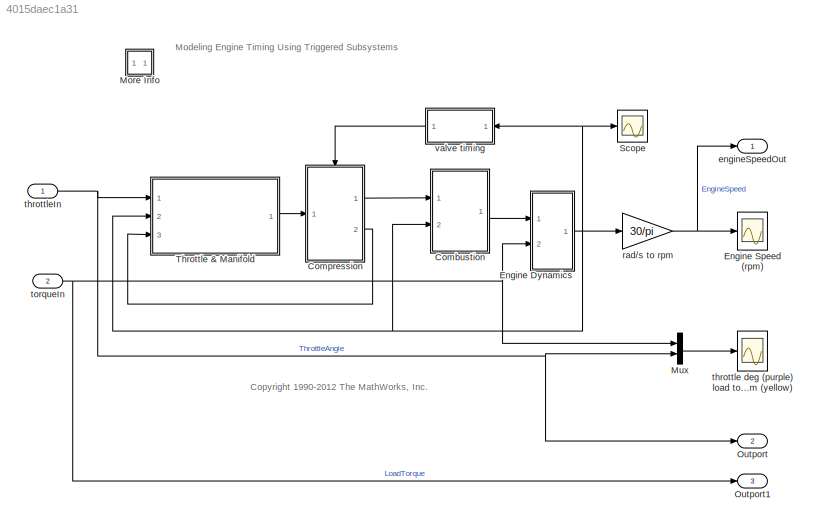
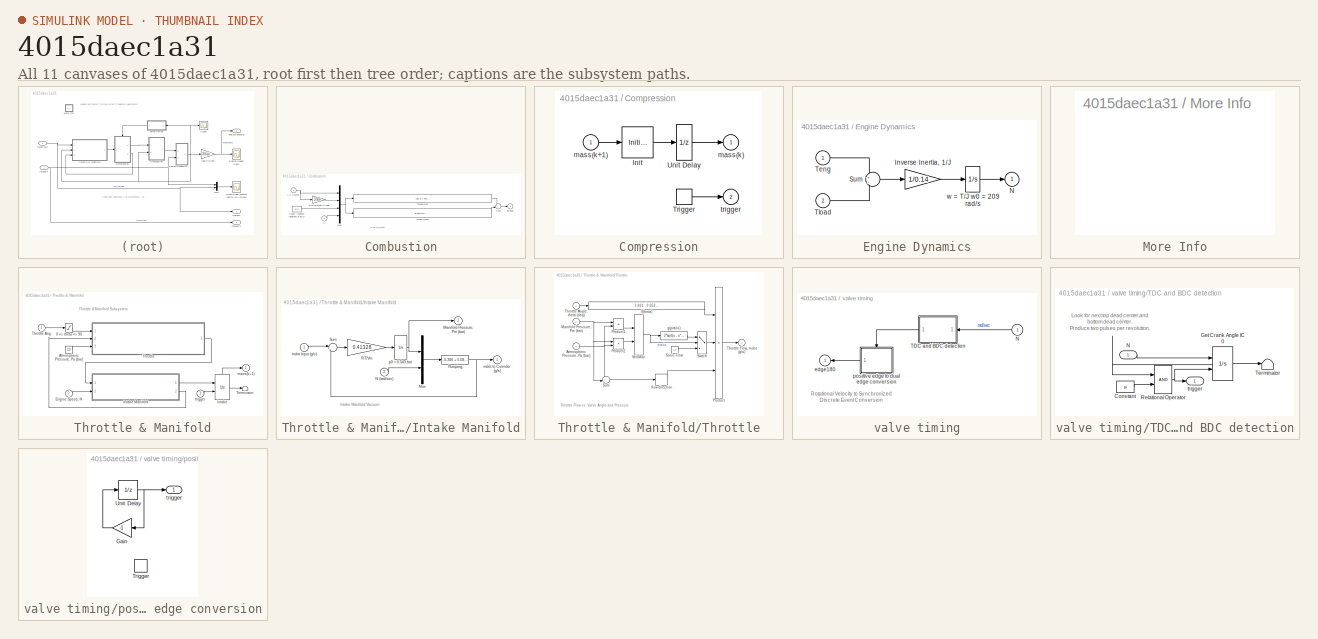
[diagram: thumbnail index - all 11 canvases of the model, root first then tree order]
MODEL slx_4015daec1a31
KIND model
CONFIG AbsTol = 1e-6
CONFIG EnableMultiTasking = off
CONFIG FixedStep = timeStepMax
CONFIG MaxStep = timeStepMax
CONFIG MinStep = auto
CONFIG RelTol = 1e-3
CONFIG SampleTimeConstraint = Unconstrained
CONFIG SolverName = VariableStepAuto
CONFIG StartTime = 0.0
CONFIG StopTime = timeFinal
BLOCK [SubSystem] Combustion
  Ports = [2, 1]
  RequestExecContextInheritance = off
BLOCK [Inport] Combustion/Air Charge
BLOCK [Mux] Combustion/Mux
  DisplayOption = bar
  Ports = [4, 1]
BLOCK [Inport] Combustion/N
  Port = 2
BLOCK [Constant] Combustion/Spark Advance (degrees BTDC)
  Value = 15.0
BLOCK [Gain] Combustion/Stoichiometric Fuel
  Gain = 1/14.6
  OutDataTypeStr = Inherit: Same as input
  ParamDataTypeStr = Inherit: Same as input
  SaturateOnIntegerOverflow = on
BLOCK [Sum] Combustion/Sum
  InputSameDT = on
  OutDataTypeStr = Inherit: Same as first input
  Ports = [2, 1]
  SaturateOnIntegerOverflow = on
BLOCK [Outport] Combustion/Torque
  InitialOutput = 0
  VectorParamsAs1DForOutWhenUnconnected = off
BLOCK [Fcn] Combustion/Torque Gen
  Expr = -181.3 + 379.36*u[1] + 21.91*u[1]/u[2] - (0.85*u[1]*u[1])/(u[2]*u[2]) + 0.26*u[3] - 0.0028*u[3]*u[3]
BLOCK [Fcn] Combustion/Torque Gen2
  Expr = 0.027*u[4] - 0.000107*u[4]*u[4] + 0.00048*u[4]*u[3] + 2.55*u[3]*u[1] - 0.05*u[3]*u[3]*u[1]
BLOCK [SubSystem] Compression
  Ports = [1, 2, 0, 1]
  RequestExecContextInheritance = off
  TreatAsAtomicUnit = on
BLOCK [InitialCondition] Compression/Init
  Value = 0.152
BLOCK [TriggerPort] Compression/Trigger
  Ports = [0, 1]
  ShowOutputPort = on
  TriggerType = either
  VariantControl = (inherit)
BLOCK [UnitDelay] Compression/Unit Delay
  HasFrameUpgradeWarning = on
  InitialCondition = 0.152
  SampleTime = -1
BLOCK [Outport] Compression/mass(k)
  InitialOutput = 0.152
  VectorParamsAs1DForOutWhenUnconnected = off
BLOCK [Inport] Compression/mass(k+1)
BLOCK [Outport] Compression/trigger
  InitialOutput = -1
  Port = 2
  VectorParamsAs1DForOutWhenUnconnected = off
BLOCK [SubSystem] Engine Dynamics
  Ports = [2, 1]
  RequestExecContextInheritance = off
BLOCK [Gain] Engine Dynamics/Inverse Inertia, 1//J
  Gain = 1/0.14
  OutDataTypeStr = Inherit: Same as input
  ParamDataTypeStr = Inherit: Same as input
  SaturateOnIntegerOverflow = on
BLOCK [Outport] Engine Dynamics/N
  InitialOutput = 0
  VectorParamsAs1DForOutWhenUnconnected = off
BLOCK [Sum] Engine Dynamics/Sum
  InputSameDT = on
  Inputs = +-
  OutDataTypeStr = Inherit: Same as first input
  Ports = [2, 1]
  SaturateOnIntegerOverflow = on
BLOCK [Inport] Engine Dynamics/Teng
BLOCK [Inport] Engine Dynamics/Tload
  Port = 2
BLOCK [Integrator] Engine Dynamics/w = T//J w0 = 209 rad//s
  InitialCondition = 209.48
  Ports = [1, 1]
BLOCK [Scope] Engine Speed (rpm)
  Floating = off
  NumInputPorts = 1
  Ports = [1]
  ScopeSpecificationString = Simulink.scopes.TimeScopeBlockCfg('CurrentConfiguration', extmgr.ConfigurationSet(extmgr.Configuration('Core','General UI',true),extmgr.Configuration('Core','Source UI',true),extmgr.Configuration('Sources','WiredSimulink',true,'DataLoggingVariableName','N','DataLoggingSaveFormat','Structure','DataLoggingDecimation','1','DataLoggingDecimateData',true),extmgr.Configuration('Visuals','Time Domain',tr...<+1714ch>
BLOCK [SubSystem] More Info
  OpenFcn = showExample('simulink_automotive/ModelingEngineTimingUsingTriggeredSubsystemsExample')
  Ports = []
  RequestExecContextInheritance = off
BLOCK [Mux] Mux
  DisplayOption = bar
  Inputs = 2
  Ports = [2, 1]
BLOCK [Outport] Outport
  Port = 2
BLOCK [Outport] Outport1
  Port = 3
BLOCK [Scope] Scope
  Floating = off
  NumInputPorts = 1
  Ports = [1]
  ScopeSpecificationString = Simulink.scopes.TimeScopeBlockCfg('CurrentConfiguration', extmgr.ConfigurationSet(extmgr.Configuration('Core','General UI',true),extmgr.Configuration('Core','Source UI',true),extmgr.Configuration('Sources','WiredSimulink',true,'DataLoggingVariableName','ScopeData1'),extmgr.Configuration('Visuals','Time Domain',true),extmgr.Configuration('Tools','Plot Navigation',true),extmgr.Configuration('Tools',...<+40ch>
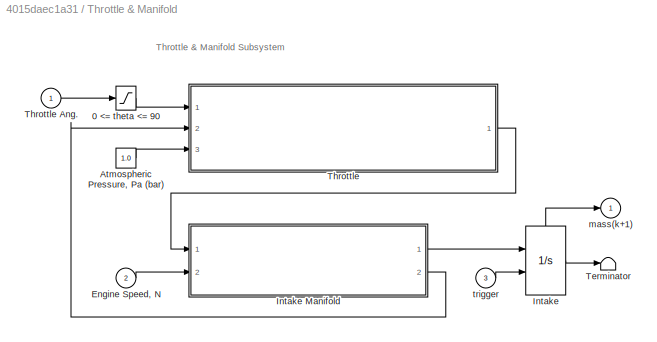
BLOCK [SubSystem] Throttle & Manifold
  Ports = [3, 1]
  RequestExecContextInheritance = off
BLOCK [Saturate] Throttle & Manifold/0 <= theta <= 90
  LowerLimit = 0
  NameLocation = top
  UpperLimit = 90
BLOCK [Constant] Throttle & Manifold/Atmospheric Pressure, Pa (bar)
  Value = 1.0
BLOCK [Inport] Throttle & Manifold/Engine Speed, N
  Port = 2
BLOCK [Integrator] Throttle & Manifold/Intake
  ExternalReset = either
  Ports = [2, 1, 0, 0, 1]
  ShowStatePort = on
BLOCK [SubSystem] Throttle & Manifold/Intake Manifold
  Ports = [2, 2]
  RequestExecContextInheritance = off
BLOCK [Outport] Throttle & Manifold/Intake Manifold/Manifold Pressure, Pm (bar)
  InitialOutput = 0
  Port = 2
  VectorParamsAs1DForOutWhenUnconnected = off
BLOCK [Mux] Throttle & Manifold/Intake Manifold/Mux
  DisplayOption = bar
  Inputs = 2
  Ports = [2, 1]
BLOCK [Inport] Throttle & Manifold/Intake Manifold/N (rad//sec)
  Port = 2
BLOCK [Fcn] Throttle & Manifold/Intake Manifold/Pumping
  Expr = -0.366 + 0.08979*u[1]*u[2] - 0.0337*u[2]*u[1]*u[1] + 0.0001*u[1]*u[2]*u[2]
BLOCK [Gain] Throttle & Manifold/Intake Manifold/RT//Vm
  Gain = 0.41328
  OutDataTypeStr = Inherit: Same as input
  ParamDataTypeStr = Inherit: Same as input
  SaturateOnIntegerOverflow = on
BLOCK [Sum] Throttle & Manifold/Intake Manifold/Sum
  InputSameDT = on
  Inputs = |+-
  OutDataTypeStr = Inherit: Same as first input
  Ports = [2, 1]
  SaturateOnIntegerOverflow = on
BLOCK [Inport] Throttle & Manifold/Intake Manifold/mdot Input (g//s)
BLOCK [Outport] Throttle & Manifold/Intake Manifold/mdot to Cylinder (g//s)
  InitialOutput = 0
  VectorParamsAs1DForOutWhenUnconnected = off
BLOCK [Integrator] Throttle & Manifold/Intake Manifold/p0 = 0.543 bar
  InitialCondition = .543
  Ports = [1, 1]
BLOCK [Terminator] Throttle & Manifold/Terminator
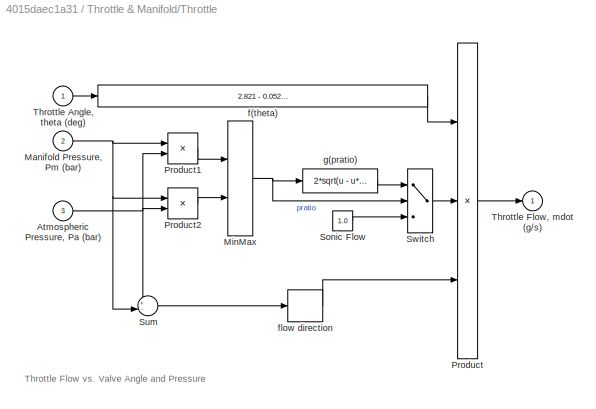
BLOCK [SubSystem] Throttle & Manifold/Throttle
  Ports = [3, 1]
  RequestExecContextInheritance = off
BLOCK [Inport] Throttle & Manifold/Throttle Ang.
BLOCK [Inport] Throttle & Manifold/Throttle/Atmospheric Pressure, Pa (bar) 
  Port = 3
BLOCK [Inport] Throttle & Manifold/Throttle/Manifold Pressure, Pm (bar)
  Port = 2
BLOCK [MinMax] Throttle & Manifold/Throttle/MinMax
  InputSameDT = on
  Inputs = 2
  Ports = [2, 1]
  SaturateOnIntegerOverflow = on
BLOCK [Product] Throttle & Manifold/Throttle/Product
  InputSameDT = on
  Inputs = 3
  OutDataTypeStr = Inherit: Same as first input
  Ports = [3, 1]
  RndMeth = Zero
  SaturateOnIntegerOverflow = on
BLOCK [Product] Throttle & Manifold/Throttle/Product1
  InputSameDT = on
  Inputs = */
  OutDataTypeStr = Inherit: Same as first input
  Ports = [2, 1]
  RndMeth = Zero
  SaturateOnIntegerOverflow = on
BLOCK [Product] Throttle & Manifold/Throttle/Product2
  InputSameDT = on
  Inputs = /*
  OutDataTypeStr = Inherit: Same as first input
  Ports = [2, 1]
  RndMeth = Zero
  SaturateOnIntegerOverflow = on
BLOCK [Constant] Throttle & Manifold/Throttle/Sonic Flow 
  Value = 1.0
BLOCK [Sum] Throttle & Manifold/Throttle/Sum
  InputSameDT = on
  Inputs = +-|
  OutDataTypeStr = Inherit: Same as first input
  Ports = [2, 1]
  SaturateOnIntegerOverflow = on
BLOCK [Switch] Throttle & Manifold/Throttle/Switch
  Threshold = 0.5
BLOCK [Inport] Throttle & Manifold/Throttle/Throttle Angle, theta (deg)
  NameLocation = top
BLOCK [Outport] Throttle & Manifold/Throttle/Throttle Flow, mdot (g//s)
  InitialOutput = 0
  VectorParamsAs1DForOutWhenUnconnected = off
BLOCK [Fcn] Throttle & Manifold/Throttle/f(theta)
  Expr = 2.821 - 0.05231*u + 0.10299*u*u - 0.00063*u*u*u
  NameLocation = top
BLOCK [Signum] Throttle & Manifold/Throttle/flow direction
BLOCK [Fcn] Throttle & Manifold/Throttle/g(pratio)
  Expr = 2*sqrt(u - u*u)
  NameLocation = top
BLOCK [Outport] Throttle & Manifold/mass(k+1)
  InitialOutput = 0
  VectorParamsAs1DForOutWhenUnconnected = off
BLOCK [Inport] Throttle & Manifold/trigger
  Port = 3
BLOCK [Outport] engineSpeedOut
BLOCK [Gain] rad//s to rpm
  Gain = 30/pi
  OutDataTypeStr = Inherit: Same as input
  ParamDataTypeStr = Inherit: Same as input
  SaturateOnIntegerOverflow = on
BLOCK [Scope] throttle deg (purple) load torque Nm (yellow)
  Floating = off
  NumInputPorts = 1
  Ports = [1]
  ScopeSpecificationString = Simulink.scopes.TimeScopeBlockCfg('CurrentConfiguration', extmgr.ConfigurationSet(extmgr.Configuration('Core','General UI',true),extmgr.Configuration('Core','Source UI',true),extmgr.Configuration('Sources','WiredSimulink',true,'DataLoggingVariableName','Tth','DataLoggingSaveFormat','Structure','DataLoggingDecimation','1','DataLoggingDecimateData',true),extmgr.Configuration('Visuals','Time Domain',...<+1721ch>
BLOCK [Inport] throttleIn
BLOCK [Inport] torqueIn
  Port = 2
BLOCK [SubSystem] valve timing
  Ports = [1, 1]
  RequestExecContextInheritance = off
BLOCK [Inport] valve timing/N
BLOCK [SubSystem] valve timing/TDC and BDC detection
  Ports = [1, 1]
  RequestExecContextInheritance = off
BLOCK [Constant] valve timing/TDC and BDC detection/Constant
  Value = pi
BLOCK [Integrator] valve timing/TDC and BDC detection/Get Crank Angle IC 0
  ExternalReset = rising
  NameLocation = top
  Ports = [2, 1, 0, 0, 1]
  ShowStatePort = on
BLOCK [Inport] valve timing/TDC and BDC detection/N
BLOCK [RelationalOperator] valve timing/TDC and BDC detection/Relational Operator
  OutDataTypeStr = boolean
  Ports = [2, 1]
BLOCK [Terminator] valve timing/TDC and BDC detection/Terminator
BLOCK [Outport] valve timing/TDC and BDC detection/trigger
  InitialOutput = 0
  VectorParamsAs1DForOutWhenUnconnected = off
BLOCK [Outport] valve timing/edge180
  InitialOutput = -1
  VectorParamsAs1DForOutWhenUnconnected = off
BLOCK [SubSystem] valve timing/positive edge to dual edge conversion
  Ports = [0, 1, 0, 1]
  RequestExecContextInheritance = off
  TreatAsAtomicUnit = on
BLOCK [Gain] valve timing/positive edge to dual edge conversion/Gain
  Gain = -1
  OutDataTypeStr = Inherit: Same as input
  ParamDataTypeStr = Inherit: Same as input
  SaturateOnIntegerOverflow = on
BLOCK [TriggerPort] valve timing/positive edge to dual edge conversion/Trigger
  Ports = []
  VariantControl = (inherit)
BLOCK [UnitDelay] valve timing/positive edge to dual edge conversion/Unit Delay
  HasFrameUpgradeWarning = on
  InitialCondition = 1
  SampleTime = -1
BLOCK [Outport] valve timing/positive edge to dual edge conversion/trigger
  InitialOutput = -1
  VectorParamsAs1DForOutWhenUnconnected = off
ANNOTATION (root): <copyright redacted>
ANNOTATION (root): Modeling Engine Timing Using Triggered Subsystems
ANNOTATION Combustion: Engine Torque
ANNOTATION Throttle & Manifold: Throttle & Manifold Subsystem
ANNOTATION Throttle & Manifold/Intake Manifold: Intake Manifold Vacuum
ANNOTATION Throttle & Manifold/Throttle: Throttle Flow vs. Valve Angle and Pressure
ANNOTATION valve timing: Rotational Velocity to Synchronized Discrete Event Conversion
ANNOTATION valve timing/TDC and BDC detection: Look for next top dead center.and bottom dead center. Produce two pulses per revolution.
NET Combustion/Air Charge:1 -> Combustion/Mux:1, Combustion/Stoichiometric Fuel:1
NET Combustion/Mux:1 -> Combustion/Torque Gen2:1, Combustion/Torque Gen:1
LINE Combustion/N:1 -> Combustion/Mux:4
LINE Combustion/Spark Advance (degrees BTDC):1 -> Combustion/Mux:3
LINE Combustion/Stoichiometric Fuel:1 -> Combustion/Mux:2
LINE Combustion/Sum:1 -> Combustion/Torque:1
LINE Combustion/Torque Gen2:1 -> Combustion/Sum:2
LINE Combustion/Torque Gen:1 -> Combustion/Sum:1
LINE Combustion:1 -> Engine Dynamics:1
LINE Compression/Init:1 -> Compression/Unit Delay:1
LINE Compression/Trigger:1 -> Compression/trigger:1
LINE Compression/Unit Delay:1 -> Compression/mass(k):1
LINE Compression/mass(k+1):1 -> Compression/Init:1
LINE Compression:1 -> Combustion:1
LINE Compression:2 -> Throttle & Manifold:3
LINE Engine Dynamics/Inverse Inertia, 1//J:1 -> Engine Dynamics/w = T//J w0 = 209 rad//s:1
LINE Engine Dynamics/Sum:1 -> Engine Dynamics/Inverse Inertia, 1//J:1
LINE Engine Dynamics/Teng:1 -> Engine Dynamics/Sum:1
LINE Engine Dynamics/Tload:1 -> Engine Dynamics/Sum:2
LINE Engine Dynamics/w = T//J w0 = 209 rad//s:1 -> Engine Dynamics/N:1
NET Engine Dynamics:1 -> Combustion:2, Scope:1, Throttle & Manifold:2, rad//s to rpm:1, valve timing:1
LINE Mux:1 -> throttle deg (purple) load torque Nm (yellow):1
LINE Throttle & Manifold/0 <= theta <= 90:1 -> Throttle & Manifold/Throttle:1
LINE Throttle & Manifold/Atmospheric Pressure, Pa (bar):1 -> Throttle & Manifold/Throttle:3
LINE Throttle & Manifold/Engine Speed, N:1 -> Throttle & Manifold/Intake Manifold:2
LINE Throttle & Manifold/Intake Manifold/Mux:1 -> Throttle & Manifold/Intake Manifold/Pumping:1
LINE Throttle & Manifold/Intake Manifold/N (rad//sec):1 -> Throttle & Manifold/Intake Manifold/Mux:2
NET Throttle & Manifold/Intake Manifold/Pumping:1 -> Throttle & Manifold/Intake Manifold/Sum:2, Throttle & Manifold/Intake Manifold/mdot to Cylinder (g//s):1
LINE Throttle & Manifold/Intake Manifold/RT//Vm:1 -> Throttle & Manifold/Intake Manifold/p0 = 0.543 bar:1
LINE Throttle & Manifold/Intake Manifold/Sum:1 -> Throttle & Manifold/Intake Manifold/RT//Vm:1
LINE Throttle & Manifold/Intake Manifold/mdot Input (g//s):1 -> Throttle & Manifold/Intake Manifold/Sum:1
NET Throttle & Manifold/Intake Manifold/p0 = 0.543 bar:1 -> Throttle & Manifold/Intake Manifold/Manifold Pressure, Pm (bar):1, Throttle & Manifold/Intake Manifold/Mux:1
LINE Throttle & Manifold/Intake Manifold:1 -> Throttle & Manifold/Intake:1
LINE Throttle & Manifold/Intake Manifold:2 -> Throttle & Manifold/Throttle:2
LINE Throttle & Manifold/Intake:1 -> Throttle & Manifold/Terminator:1
LINE Throttle & Manifold/Intake:state -> Throttle & Manifold/mass(k+1):1
LINE Throttle & Manifold/Throttle Ang.:1 -> Throttle & Manifold/0 <= theta <= 90:1
NET Throttle & Manifold/Throttle/Atmospheric Pressure, Pa (bar) :1 -> Throttle & Manifold/Throttle/Product1:2, Throttle & Manifold/Throttle/Product2:2, Throttle & Manifold/Throttle/Sum:1
NET Throttle & Manifold/Throttle/Manifold Pressure, Pm (bar):1 -> Throttle & Manifold/Throttle/Product1:1, Throttle & Manifold/Throttle/Product2:1, Throttle & Manifold/Throttle/Sum:2
NET Throttle & Manifold/Throttle/MinMax:1 -> Throttle & Manifold/Throttle/Switch:2, Throttle & Manifold/Throttle/g(pratio):1
LINE Throttle & Manifold/Throttle/Product1:1 -> Throttle & Manifold/Throttle/MinMax:1
LINE Throttle & Manifold/Throttle/Product2:1 -> Throttle & Manifold/Throttle/MinMax:2
LINE Throttle & Manifold/Throttle/Product:1 -> Throttle & Manifold/Throttle/Throttle Flow, mdot (g//s):1
LINE Throttle & Manifold/Throttle/Sonic Flow :1 -> Throttle & Manifold/Throttle/Switch:3
LINE Throttle & Manifold/Throttle/Sum:1 -> Throttle & Manifold/Throttle/flow direction:1
LINE Throttle & Manifold/Throttle/Switch:1 -> Throttle & Manifold/Throttle/Product:2
LINE Throttle & Manifold/Throttle/Throttle Angle, theta (deg):1 -> Throttle & Manifold/Throttle/f(theta):1
LINE Throttle & Manifold/Throttle/f(theta):1 -> Throttle & Manifold/Throttle/Product:1
LINE Throttle & Manifold/Throttle/flow direction:1 -> Throttle & Manifold/Throttle/Product:3
LINE Throttle & Manifold/Throttle/g(pratio):1 -> Throttle & Manifold/Throttle/Switch:1
LINE Throttle & Manifold/Throttle:1 -> Throttle & Manifold/Intake Manifold:1
LINE Throttle & Manifold/trigger:1 -> Throttle & Manifold/Intake:2
LINE Throttle & Manifold:1 -> Compression:1
NET rad//s to rpm:1 -> Engine Speed (rpm):1, engineSpeedOut:1
NET throttleIn:1 -> Mux:2, Outport:1, Throttle & Manifold:1
NET torqueIn:1 -> Engine Dynamics:2, Mux:1, Outport1:1
LINE valve timing/N:1 -> valve timing/TDC and BDC detection:1
LINE valve timing/TDC and BDC detection/Constant:1 -> valve timing/TDC and BDC detection/Relational Operator:2
LINE valve timing/TDC and BDC detection/Get Crank Angle IC 0:1 -> valve timing/TDC and BDC detection/Terminator:1
LINE valve timing/TDC and BDC detection/Get Crank Angle IC 0:state -> valve timing/TDC and BDC detection/Relational Operator:1
LINE valve timing/TDC and BDC detection/N:1 -> valve timing/TDC and BDC detection/Get Crank Angle IC 0:1
NET valve timing/TDC and BDC detection/Relational Operator:1 -> valve timing/TDC and BDC detection/Get Crank Angle IC 0:2, valve timing/TDC and BDC detection/trigger:1
LINE valve timing/TDC and BDC detection:1 -> valve timing/positive edge to dual edge conversion:trigger
LINE valve timing/positive edge to dual edge conversion/Gain:1 -> valve timing/positive edge to dual edge conversion/Unit Delay:1
NET valve timing/positive edge to dual edge conversion/Unit Delay:1 -> valve timing/positive edge to dual edge conversion/Gain:1, valve timing/positive edge to dual edge conversion/trigger:1
LINE valve timing/positive edge to dual edge conversion:1 -> valve timing/edge180:1
LINE valve timing:1 -> Compression:trigger
note: NET lines group one-source signal fan-out (src -> all destinations, sorted); 1:1 wires keep LINE
